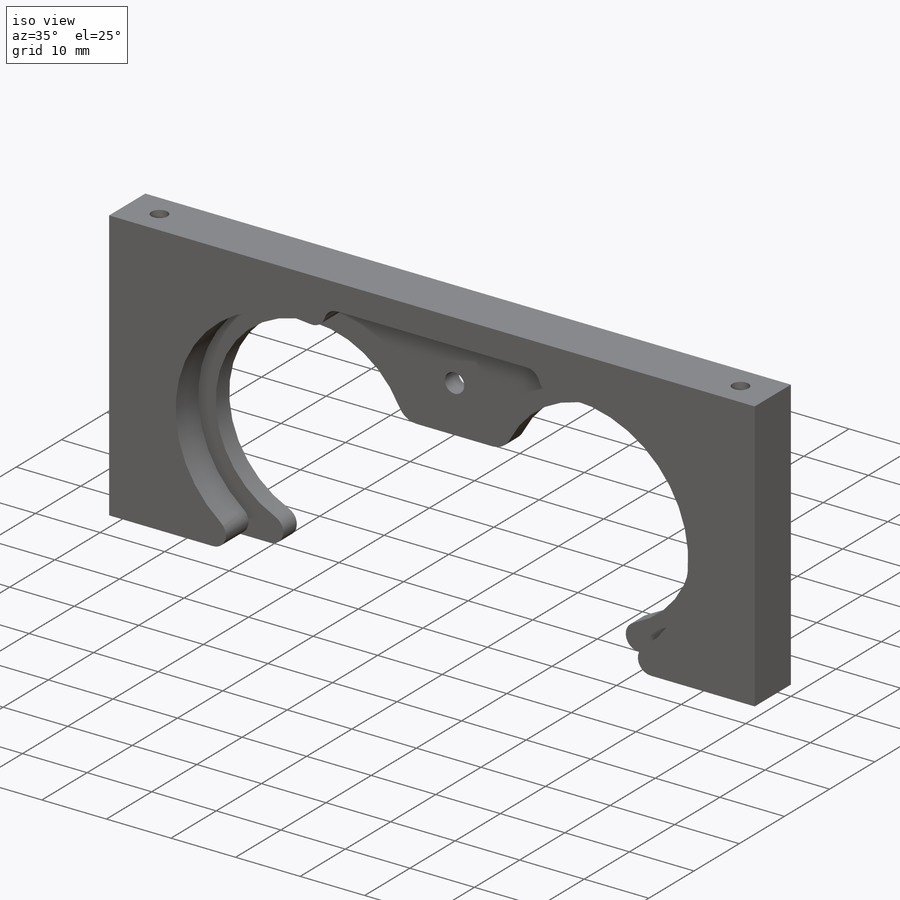
[diagram: iso view]
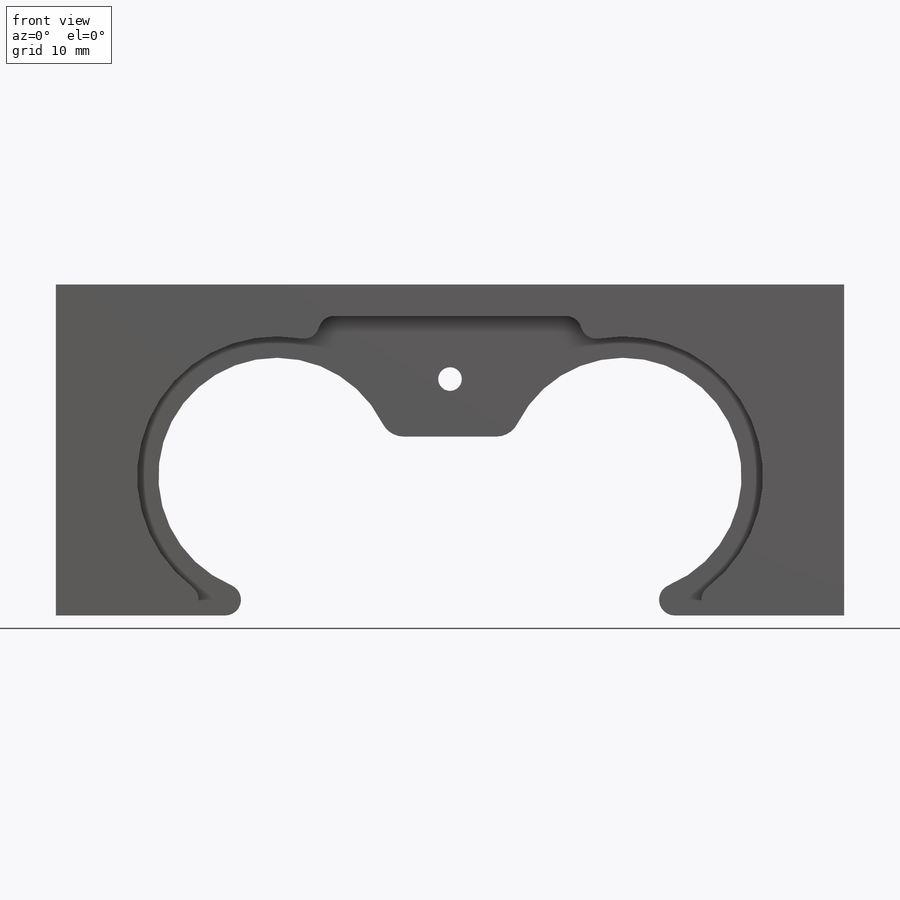
[diagram: front view]
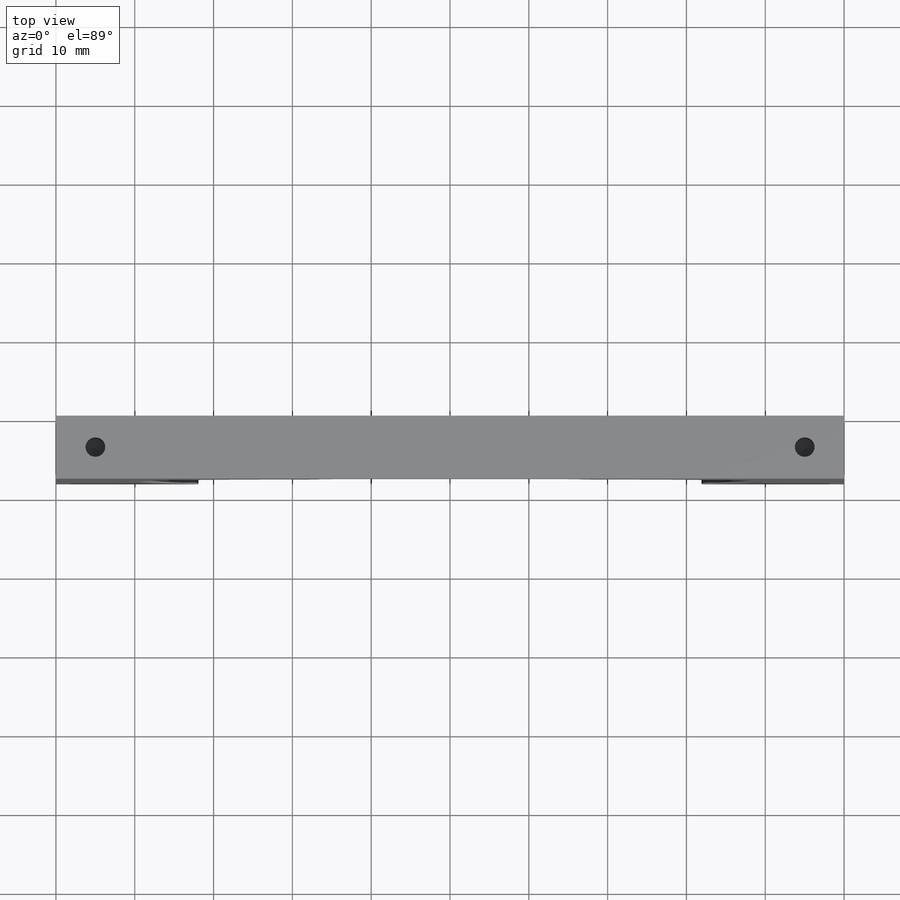
[diagram: top view]
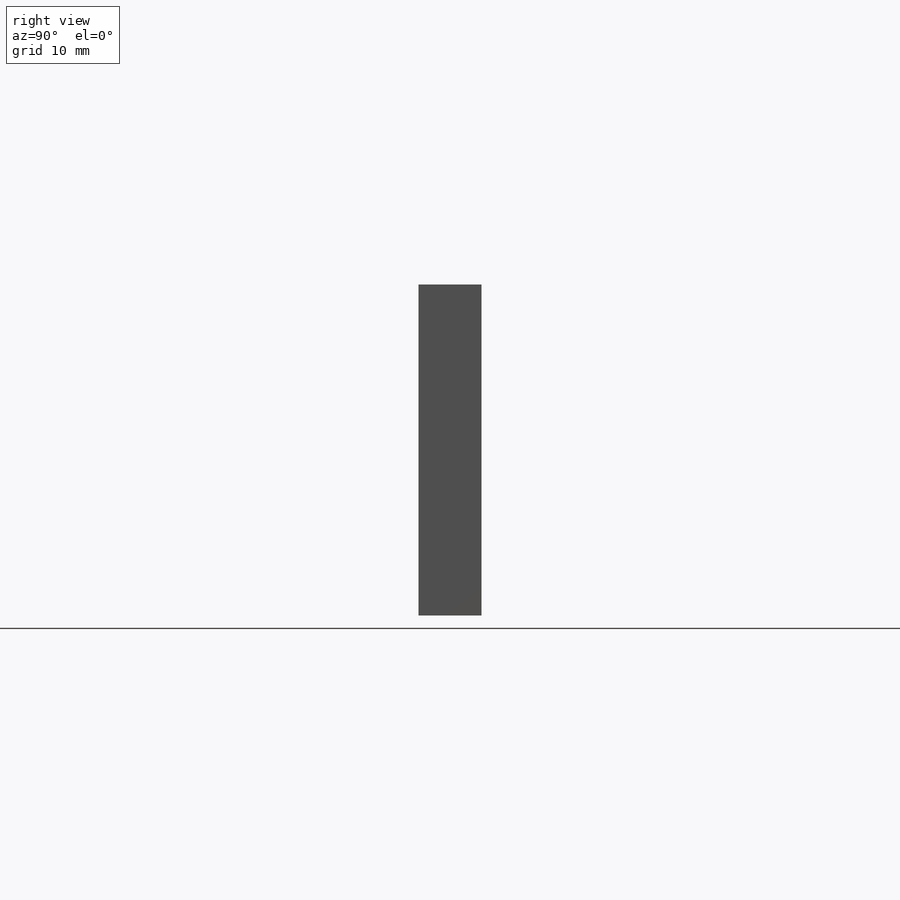
[diagram: right view]
SOLIDWORKS PART (.sldprt)
format: sldprt  version: not decoded by parser v0  size: 334,848 bytes
history: native  units: mm
features: sketch x8, cut_extrude x3, hole x2, material x1, extrude x1 (+11 scaffold rows collapsed)
feature tree (26):
  scaffold x11  (default folders/planes/origin — collapsed)
  material  "POM Acetal Copolymer"
  sketch  "Sketch3"  dims[c1.D3=30.0mm c1.D6=15.0mm c1.D7=3.0mm c1.D9=2.0mm c1.D1=110.0mm c1.D2=42.0mm c2.D1=100.0mm c2.D4=17.7mm c2.D5=22.7mm c2.D6=22.7mm c2.D3=17.7mm c3.D4=22.0mm c3.D5=22.0mm c3.D8=3.0mm c3.D2=42.0mm c3.D3=17.7mm c4.D8=5.0mm c4.D6=~141.840311deg]
  extrude  "Boss-Extrude3"  Depth=8mm
  sketch  "Sketch4"  dims[c1.D1=2.0mm c1.D2=17.7mm c2.D1=17.7mm c2.D2=2.0mm c2.D4=5.0mm c2.D3=10.0mm]
  cut_extrude  "Cut-Extrude1"  Depth=3mm
  sketch  "Sketch5"  dims[c1.D2=2.0mm c1.D1=4.0mm c2.D2=40.0mm c2.D3=78.0mm c2.D4=39.0mm c2.D1=4.0mm c3.D2=36.0mm c3.D3=2.0mm]
  cut_extrude  "Cut-Extrude3"  [1 undecoded]
  hole  "Tap Drill for M3 Tap1"  Diameter=2.5mm Depth=10mm
  sketch  "Sketch7"  dims[D1=5.0mm D2=5.0mm D3=4.0mm]
  sketch  "Sketch6"  dims[hole-wizard template sketch: 50 standard entries collapsed; hole parameters above]
  hole  "Tap Drill for M3 Tap2"  Diameter=2.5mm Depth=10mm
  sketch  "Sketch9"  dims[D1=5.0mm D2=4.0mm D3=5.0mm]
  sketch  "Sketch8"  dims[hole-wizard template sketch: 50 standard entries collapsed; hole parameters above]
  sketch  "Sketch10"  dims[D1=3.0mm D2=30.0mm]
  cut_extrude  "Cut-Extrude4"  [1 undecoded]
decode coverage: 12 of 14 modeling features carry decoded parameters
note: ~ marks probable driven/reference dimensions
note: 2 parameter values undecoded
note: suppression state not decoded; provenance and decode notes live in map.json
